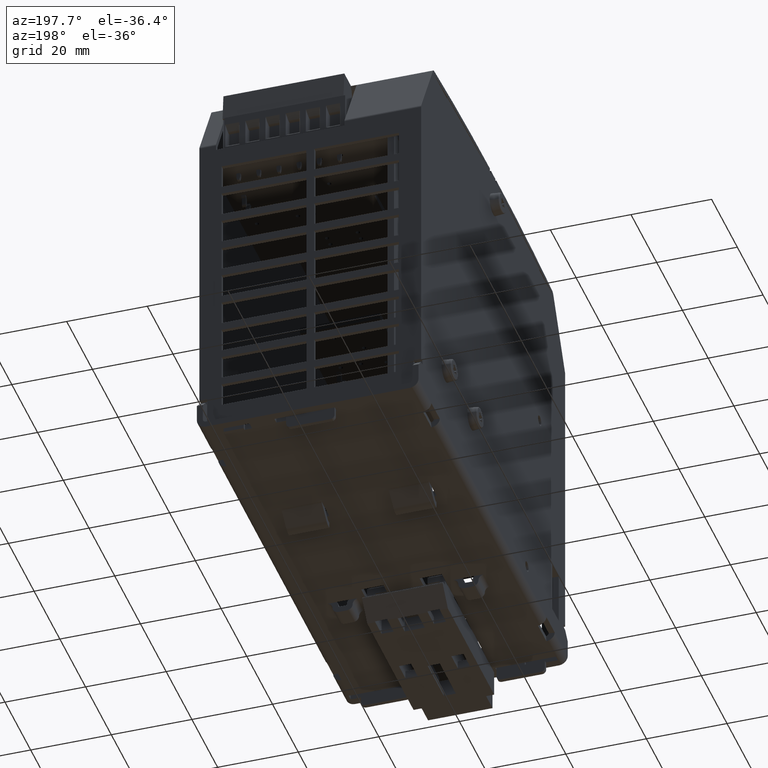
[diagram: clean part render]
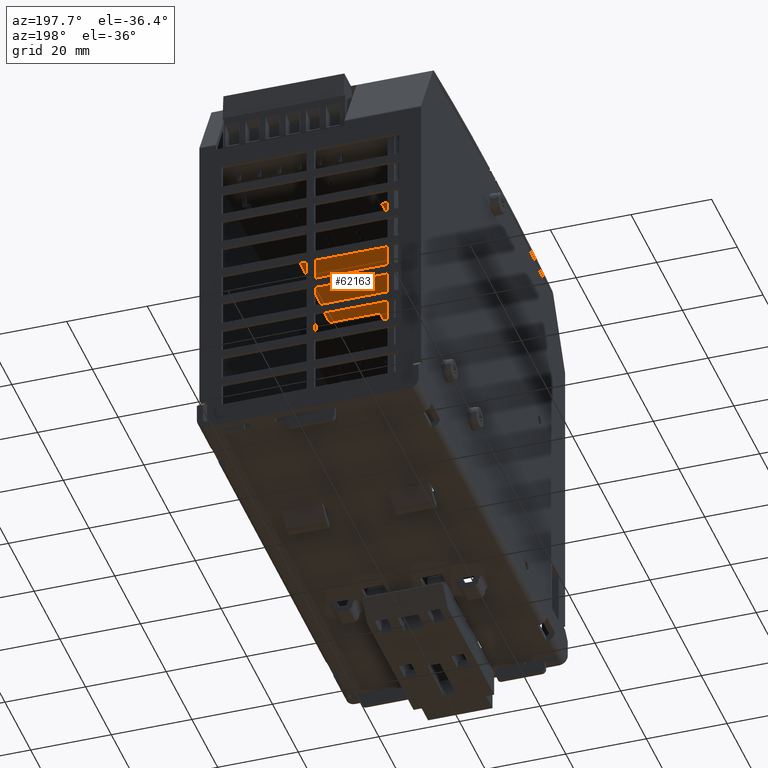
[diagram: same view with one face highlighted and labeled with its STEP entity id]
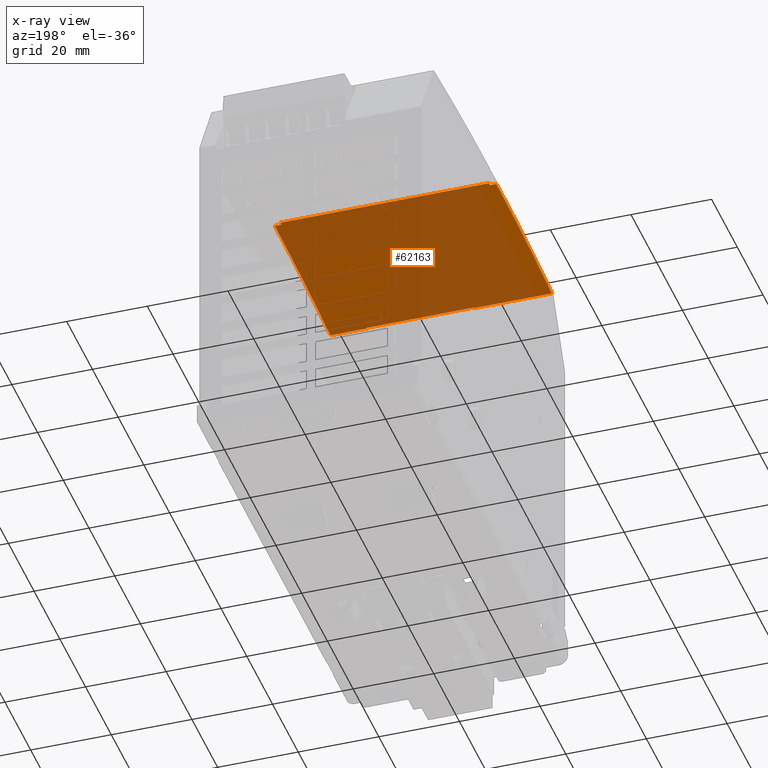
[diagram: x-ray of the same camera — body ghosted, the highlighted face saturated]
A machine part, auxiliary view. The second image highlights one B-rep face of the part: STEP entity #62163.
The next image is the same camera in x-ray: the body ghosted, the highlighted face saturated — about 80% of this face is hidden behind the body in this view.
In plain terms, the highlighted cylindrical surface (partial cylindrical patch) has radius 540.507 mm, axis along (-1, 0, 0).
Its self-contained STEP definition (entity closure, byte-faithful):
#60258=CARTESIAN_POINT('',(-1.019685039370096,-0.066929133858246,4.011811023622574));
#60259=VERTEX_POINT('',#60258);
#60287=CARTESIAN_POINT('',(1.019685039370063,-0.066929133858246,4.011811023622574));
#60288=VERTEX_POINT('',#60287);
#60317=CARTESIAN_POINT('',(-1.019685039370096,-0.098399566838293,4.011787752987995));
#60318=VERTEX_POINT('',#60317);
#60319=CARTESIAN_POINT('',(-1.019685039370096,-0.066929133851994,-17.267984561746957));
#60320=DIRECTION('',(-1.0,0.0,0.0));
#60321=DIRECTION('',(0.0,-0.001478887936684,0.999998906444637));
#60322=AXIS2_PLACEMENT_3D('',#60319,#60320,#60321);
#60323=CIRCLE('',#60322,21.279795585369527);
#60324=EDGE_CURVE('',#60318,#60259,#60323,.T.);
#60343=CARTESIAN_POINT('',(1.019685039370063,-0.098399566838293,4.011787752987997));
#60344=VERTEX_POINT('',#60343);
#60351=CARTESIAN_POINT('',(1.019685039370063,-0.066929133851994,-17.267984561746957));
#60352=DIRECTION('',(1.0,0.0,0.0));
#60353=DIRECTION('',(0.0,-2.937771E-013,1.0));
#60354=AXIS2_PLACEMENT_3D('',#60351,#60352,#60353);
#60355=CIRCLE('',#60354,21.279795585369527);
#60356=EDGE_CURVE('',#60288,#60344,#60355,.T.);
#60366=CARTESIAN_POINT('',(-1.082677165354348,-0.098399566838293,4.011787752987997));
#60367=VERTEX_POINT('',#60366);
#60368=CARTESIAN_POINT('',(-1.082677165354348,-0.098399566838293,4.011787752987997));
#60369=DIRECTION('',(1.0,0.0,0.0));
#60370=VECTOR('',#60369,0.062992125984252);
#60371=LINE('',#60368,#60370);
#60372=EDGE_CURVE('',#60367,#60318,#60371,.T.);
#60426=CARTESIAN_POINT('',(1.082677165354315,-0.098399566838293,4.011787752987997));
#60427=VERTEX_POINT('',#60426);
#60428=CARTESIAN_POINT('',(1.019685039370063,-0.098399566838293,4.011787752987997));
#60429=DIRECTION('',(1.0,0.0,0.0));
#60430=VECTOR('',#60429,0.062992125984252);
#60431=LINE('',#60428,#60430);
#60432=EDGE_CURVE('',#60344,#60427,#60431,.T.);
#60505=CARTESIAN_POINT('',(1.082677165354315,-1.800833276881364,3.941053053805016));
#60506=VERTEX_POINT('',#60505);
#60513=CARTESIAN_POINT('',(1.082677165354312,-0.066929133851994,-17.267984561746957));
#60514=DIRECTION('',(-1.0,0.0,0.0));
#60515=DIRECTION('',(0.0,-0.081481240553903,0.996674875492403));
#60516=AXIS2_PLACEMENT_3D('',#60513,#60514,#60515);
#60517=CIRCLE('',#60516,21.279795585369538);
#60518=EDGE_CURVE('',#60506,#60427,#60517,.T.);
#60615=CARTESIAN_POINT('',(0.720472440944872,-1.800833276881364,3.941053053805009));
#60616=VERTEX_POINT('',#60615);
#60653=CARTESIAN_POINT('',(-0.322834645669302,-1.800833276881364,3.941053053805009));
#60654=VERTEX_POINT('',#60653);
#61006=CARTESIAN_POINT('',(0.720472440944872,-1.791974799989189,3.941775399291115));
#61007=VERTEX_POINT('',#61006);
#61014=CARTESIAN_POINT('',(0.720472440944872,-0.066929133851994,-17.267984561746957));
#61015=DIRECTION('',(-1.0,0.0,0.0));
#61016=DIRECTION('',(0.0,-0.081481240553903,0.996674875492403));
#61017=AXIS2_PLACEMENT_3D('',#61014,#61015,#61016);
#61018=CIRCLE('',#61017,21.279795585369527);
#61019=EDGE_CURVE('',#60616,#61007,#61018,.T.);
#61029=CARTESIAN_POINT('',(-0.322834645669302,-1.79197479998919,3.941775399291115));
#61030=VERTEX_POINT('',#61029);
#61031=CARTESIAN_POINT('',(0.720472440944872,-1.791974799989189,3.941775399291115));
#61032=DIRECTION('',(-1.0,0.0,0.0));
#61033=VECTOR('',#61032,1.043307086614174);
#61034=LINE('',#61031,#61033);
#61035=EDGE_CURVE('',#61007,#61030,#61034,.T.);
#61054=CARTESIAN_POINT('',(-0.322834645669302,-0.066929133851994,-17.267984561746957));
#61055=DIRECTION('',(1.0,0.0,0.0));
#61056=DIRECTION('',(0.0,-0.081064954746239,0.996708820625156));
#61057=AXIS2_PLACEMENT_3D('',#61054,#61055,#61056);
#61058=CIRCLE('',#61057,21.279795585369531);
#61059=EDGE_CURVE('',#61030,#60654,#61058,.T.);
#62121=CARTESIAN_POINT('',(-1.835802E-014,-0.066929133851994,-17.267984561746957));
#62122=DIRECTION('',(-1.0,0.0,0.0));
#62123=DIRECTION('',(0.0,-0.081481240553903,0.996674875492403));
#62124=AXIS2_PLACEMENT_3D('',#62121,#62122,#62123);
#62125=CYLINDRICAL_SURFACE('',#62124,21.279795585369527);
#62126=ORIENTED_EDGE('',*,*,#60324,.T.);
#62127=CARTESIAN_POINT('',(1.019685039370063,-0.066929133858246,4.011811023622574));
#62128=DIRECTION('',(-1.0,0.0,0.0));
#62129=VECTOR('',#62128,2.039370078740159);
#62130=LINE('',#62127,#62129);
#62131=EDGE_CURVE('',#60288,#60259,#62130,.T.);
#62132=ORIENTED_EDGE('',*,*,#62131,.F.);
#62133=ORIENTED_EDGE('',*,*,#60356,.T.);
#62134=ORIENTED_EDGE('',*,*,#60432,.T.);
#62135=ORIENTED_EDGE('',*,*,#60518,.F.);
#62136=CARTESIAN_POINT('',(1.082677165354315,-1.800833276881364,3.941053053805016));
#62137=DIRECTION('',(-1.0,0.0,0.0));
#62138=VECTOR('',#62137,0.362204724409443);
#62139=LINE('',#62136,#62138);
#62140=EDGE_CURVE('',#60506,#60616,#62139,.T.);
#62141=ORIENTED_EDGE('',*,*,#62140,.T.);
#62142=ORIENTED_EDGE('',*,*,#61019,.T.);
#62143=ORIENTED_EDGE('',*,*,#61035,.T.);
#62144=ORIENTED_EDGE('',*,*,#61059,.T.);
#62145=CARTESIAN_POINT('',(-1.082677165354349,-1.800833276881362,3.941053053805005));
#62146=VERTEX_POINT('',#62145);
#62147=CARTESIAN_POINT('',(-0.322834645669302,-1.800833276881364,3.941053053805009));
#62148=DIRECTION('',(-1.0,0.0,0.0));
#62149=VECTOR('',#62148,0.759842519685047);
#62150=LINE('',#62147,#62149);
#62151=EDGE_CURVE('',#60654,#62146,#62150,.T.);
#62152=ORIENTED_EDGE('',*,*,#62151,.T.);
#62153=CARTESIAN_POINT('',(-1.082677165354349,-0.066929133851994,-17.267984561746957));
#62154=DIRECTION('',(1.0,0.0,0.0));
#62155=DIRECTION('',(0.0,-0.001478887936684,0.999998906444637));
#62156=AXIS2_PLACEMENT_3D('',#62153,#62154,#62155);
#62157=CIRCLE('',#62156,21.279795585369527);
#62158=EDGE_CURVE('',#60367,#62146,#62157,.T.);
#62159=ORIENTED_EDGE('',*,*,#62158,.F.);
#62160=ORIENTED_EDGE('',*,*,#60372,.T.);
#62161=EDGE_LOOP('',(#62126,#62132,#62133,#62134,#62135,#62141,#62142,#62143,#62144,#62152,#62159,#62160));
#62162=FACE_OUTER_BOUND('',#62161,.T.);
#62163=ADVANCED_FACE('',(#62162),#62125,.F.);